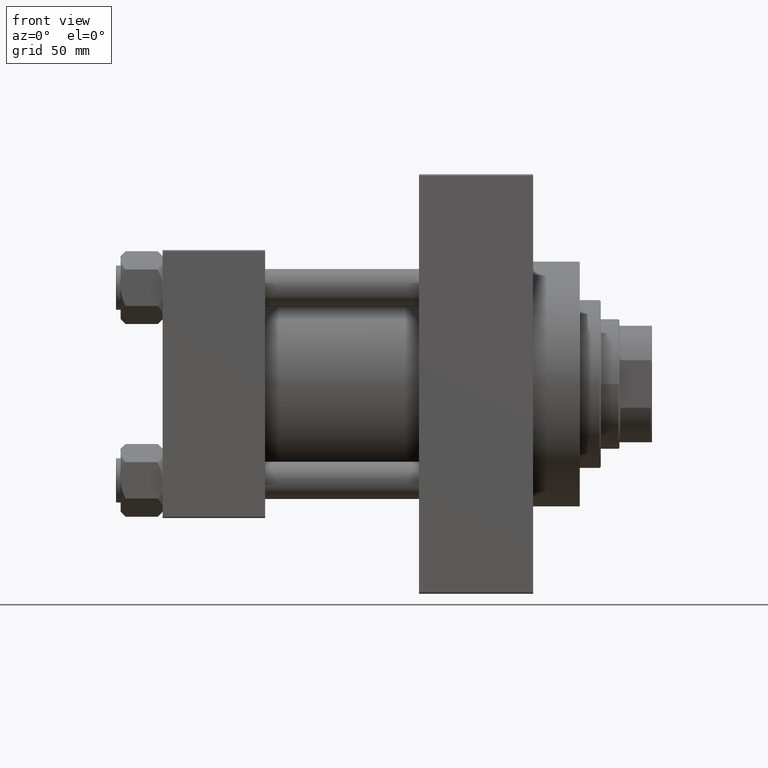
[diagram: clean part render]
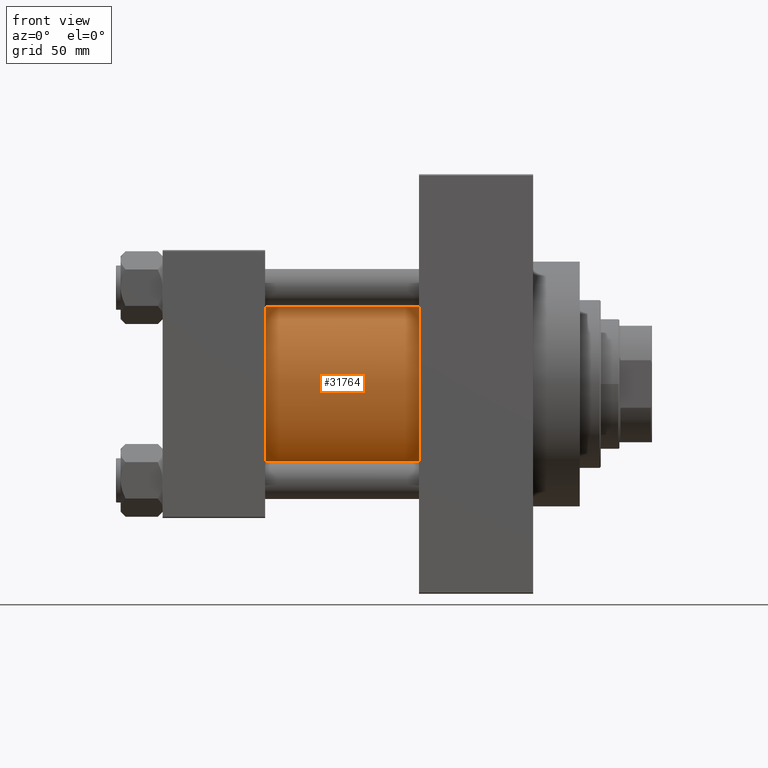
[diagram: same view with one face highlighted and labeled with its STEP entity id]
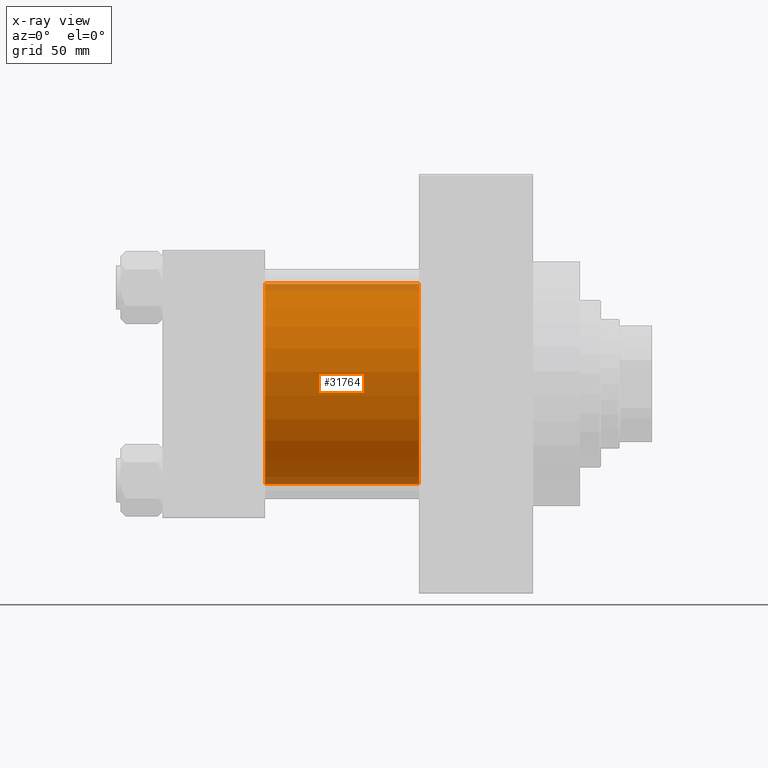
[diagram: x-ray of the same camera — body ghosted, the highlighted face saturated]
A machine part, front view. The second image highlights one B-rep face of the part: STEP entity #31764.
The next image is the same camera in x-ray: the body ghosted, the highlighted face saturated — about 7% of this face is hidden behind the body in this view.
In plain terms, the highlighted cylindrical surface (partial cylindrical patch) has radius 43 mm, axis along (-1, -0, -0).
Its self-contained STEP definition (entity closure, byte-faithful):
#902 = VERTEX_POINT ( 'NONE', #29961 ) ;
#1966 = DIRECTION ( 'NONE',  ( 1.000000000000000000, 0.000000000000000000, 0.000000000000000000 ) ) ;
#4222 = DIRECTION ( 'NONE',  ( -1.000000000000000000, -0.000000000000000000, -0.000000000000000000 ) ) ;
#4309 = CARTESIAN_POINT ( 'NONE',  ( 44.00000000000000000, 2.663896022368408223E-15, -43.00000000000000000 ) ) ;
#5708 = ORIENTED_EDGE ( 'NONE', *, *, #16793, .F. ) ;
#6613 = LINE ( 'NONE', #36038, #44715 ) ;
#8958 = CARTESIAN_POINT ( 'NONE',  ( 44.00000000000000000, -2.602085213965210642E-15, 0.000000000000000000 ) ) ;
#10980 = CIRCLE ( 'NONE', #17145, 43.00000000000000000 ) ;
#15320 = EDGE_CURVE ( 'NONE', #902, #22422, #6613, .T. ) ;
#16689 = DIRECTION ( 'NONE',  ( -1.000000000000000000, -0.000000000000000000, -0.000000000000000000 ) ) ;
#16793 = EDGE_CURVE ( 'NONE', #29464, #902, #27839, .T. ) ;
#17145 = AXIS2_PLACEMENT_3D ( 'NONE', #8958, #34305, #38626 ) ;
#19576 = EDGE_CURVE ( 'NONE', #29644, #22422, #10980, .T. ) ;
#20733 = AXIS2_PLACEMENT_3D ( 'NONE', #45178, #4222, #30713 ) ;
#22422 = VERTEX_POINT ( 'NONE', #4309 ) ;
#25101 = LINE ( 'NONE', #42740, #35658 ) ;
#26106 = CARTESIAN_POINT ( 'NONE',  ( 44.00000000000000000, -2.602085213965210642E-15, 43.00000000000000000 ) ) ;
#27839 = CIRCLE ( 'NONE', #33264, 43.00000000000000000 ) ;
#27880 = CARTESIAN_POINT ( 'NONE',  ( 110.0000000000000000, -2.602085213965210642E-15, 43.00000000000000000 ) ) ;
#28203 = DIRECTION ( 'NONE',  ( 0.000000000000000000, 0.000000000000000000, -1.000000000000000000 ) ) ;
#28703 = EDGE_LOOP ( 'NONE', ( #41427, #5708, #43346, #40937 ) ) ;
#29464 = VERTEX_POINT ( 'NONE', #27880 ) ;
#29644 = VERTEX_POINT ( 'NONE', #26106 ) ;
#29961 = CARTESIAN_POINT ( 'NONE',  ( 110.0000000000000000, 2.663896022368408223E-15, -43.00000000000000000 ) ) ;
#30713 = DIRECTION ( 'NONE',  ( 0.000000000000000000, 0.000000000000000000, 1.000000000000000000 ) ) ;
#31764 = ADVANCED_FACE ( 'NONE', ( #38206 ), #37726, .T. ) ;
#33264 = AXIS2_PLACEMENT_3D ( 'NONE', #38371, #1966, #28203 ) ;
#34305 = DIRECTION ( 'NONE',  ( 1.000000000000000000, -0.000000000000000000, 0.000000000000000000 ) ) ;
#35658 = VECTOR ( 'NONE', #16689, 1000.000000000000000 ) ;
#36038 = CARTESIAN_POINT ( 'NONE',  ( 110.0000000000000000, 2.663896022368408223E-15, -43.00000000000000000 ) ) ;
#37726 = CYLINDRICAL_SURFACE ( 'NONE', #20733, 43.00000000000000000 ) ;
#38206 = FACE_OUTER_BOUND ( 'NONE', #28703, .T. ) ;
#38371 = CARTESIAN_POINT ( 'NONE',  ( 110.0000000000000000, -2.602085213965210642E-15, 0.000000000000000000 ) ) ;
#38626 = DIRECTION ( 'NONE',  ( 0.000000000000000000, 0.000000000000000000, 1.000000000000000000 ) ) ;
#40937 = ORIENTED_EDGE ( 'NONE', *, *, #19576, .T. ) ;
#41427 = ORIENTED_EDGE ( 'NONE', *, *, #15320, .F. ) ;
#42740 = CARTESIAN_POINT ( 'NONE',  ( 110.0000000000000000, -2.602085213965210642E-15, 43.00000000000000000 ) ) ;
#43346 = ORIENTED_EDGE ( 'NONE', *, *, #44249, .T. ) ;
#43500 = DIRECTION ( 'NONE',  ( -1.000000000000000000, -0.000000000000000000, -0.000000000000000000 ) ) ;
#44249 = EDGE_CURVE ( 'NONE', #29464, #29644, #25101, .T. ) ;
#44715 = VECTOR ( 'NONE', #43500, 1000.000000000000000 ) ;
#45178 = CARTESIAN_POINT ( 'NONE',  ( 110.0000000000000000, -2.602085213965210642E-15, 0.000000000000000000 ) ) ;